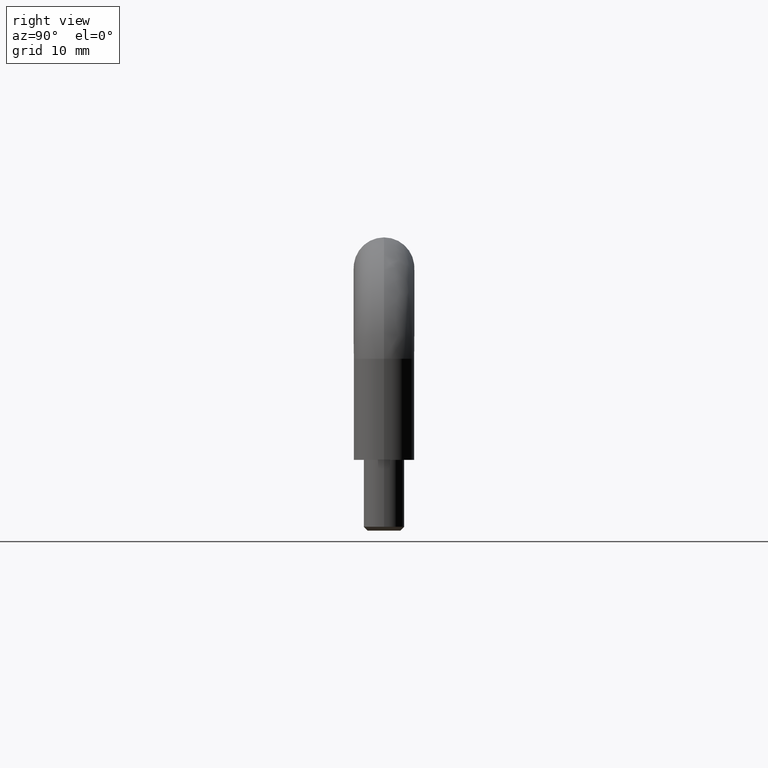
[diagram: clean part render]
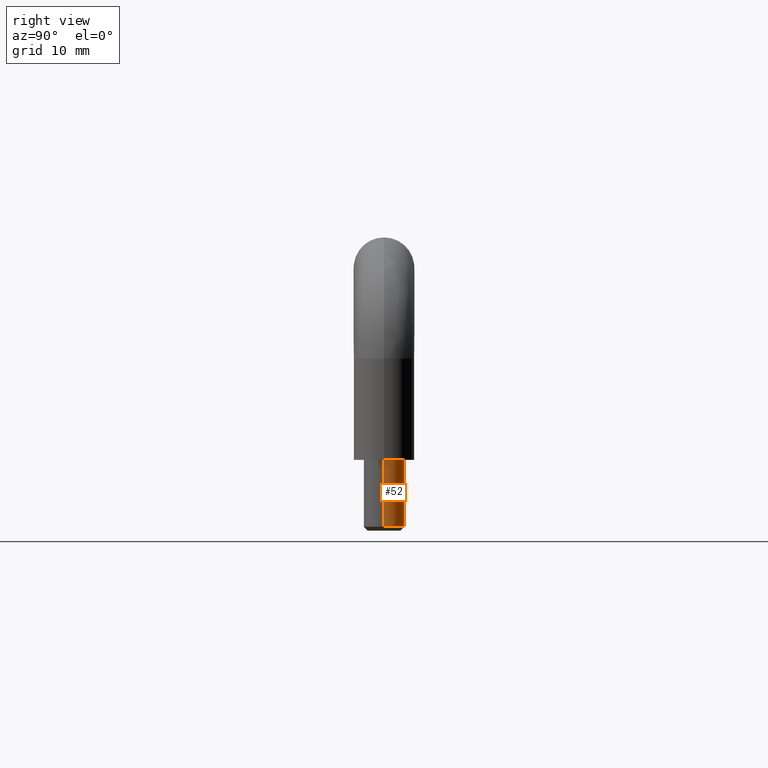
[diagram: same view with one face highlighted and labeled with its STEP entity id]
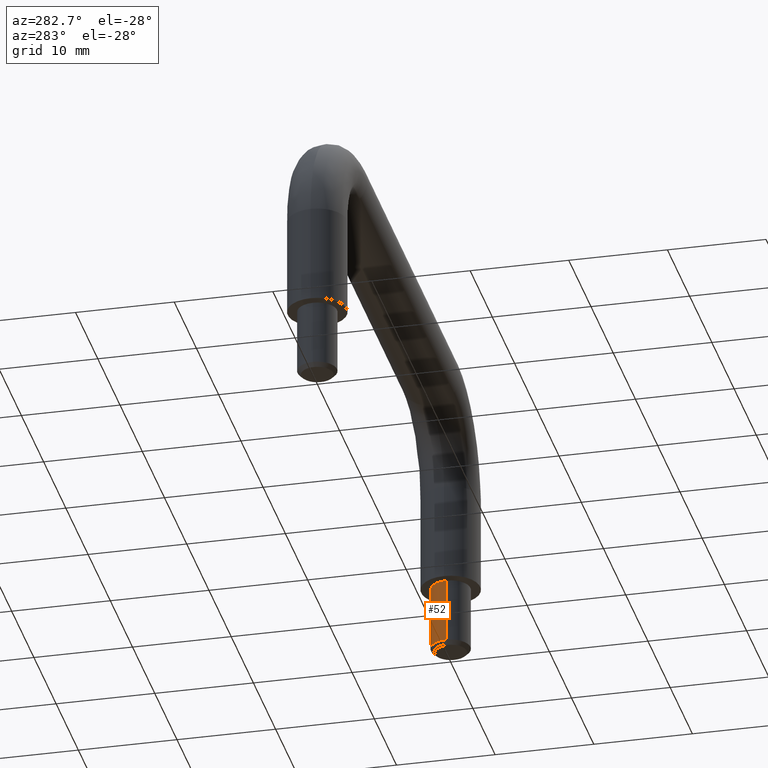
[diagram: same view with one face highlighted and labeled with its STEP entity id]
A machine part, right view. The second image highlights one B-rep face of the part: STEP entity #52.
A second angle (auxiliary view) of the same face is appended — the face is thin or edge-on in the first view.
In plain terms, the highlighted cylindrical surface (edge-blend (fillet) strip) has radius 2.0045 mm, axis along (-0, 0, -1).
Its self-contained STEP definition (entity closure, byte-faithful):
#52=ADVANCED_FACE('',(#185),#184,.T.);
#184=CYLINDRICAL_SURFACE('',#529,2.00450976625E+00);
#185=FACE_OUTER_BOUND('',#530,.T.);
#526=CARTESIAN_POINT('',(3.00000000001E+01,0.00000000000E+00,-1.93105001450E+01));
#527=DIRECTION('',(-0.00000000000E+00,0.00000000000E+00,-1.00000000000E+00));
#528=DIRECTION('',(-1.00000000000E+00,-0.00000000000E+00,0.00000000000E+00));
#529=AXIS2_PLACEMENT_3D('',#526,#527,#528);
#530=EDGE_LOOP('',(#644,#645,#646,#647));
#644=ORIENTED_EDGE('',*,*,#712,.F.);
#645=ORIENTED_EDGE('',*,*,#713,.F.);
#646=ORIENTED_EDGE('',*,*,#693,.T.);
#647=ORIENTED_EDGE('',*,*,#714,.T.);
#693=EDGE_CURVE('',#783,#782,#790,.T.);
#712=EDGE_CURVE('',#914,#915,#916,.T.);
#713=EDGE_CURVE('',#783,#914,#922,.T.);
#714=EDGE_CURVE('',#782,#915,#928,.T.);
#782=VERTEX_POINT('',#1043);
#783=VERTEX_POINT('',#1044);
#790=CIRCLE('',#1052,2.00450976625E+00);
#914=VERTEX_POINT('',#1128);
#915=VERTEX_POINT('',#1129);
#916=CIRCLE('',#1133,2.00450976625E+00);
#922=(BOUNDED_CURVE() B_SPLINE_CURVE(1,(#1134,#1135),.UNSPECIFIED.,.F.,.F.) B_SPLINE_CURVE_WITH_KNOTS((2,2),(8.33333347523E-02,9.16666664312E-01),.UNSPECIFIED.) CURVE() GEOMETRIC_REPRESENTATION_ITEM() RATIONAL_B_SPLINE_CURVE((1.00000000000E+00,1.00000000000E+00)) REPRESENTATION_ITEM('') );
#928=(BOUNDED_CURVE() B_SPLINE_CURVE(1,(#1136,#1137),.UNSPECIFIED.,.F.,.F.) B_SPLINE_CURVE_WITH_KNOTS((2,2),(8.33333333333E-02,9.16666666667E-01),.UNSPECIFIED.) CURVE() GEOMETRIC_REPRESENTATION_ITEM() RATIONAL_B_SPLINE_CURVE((7.50000000000E-01,7.50000000000E-01)) REPRESENTATION_ITEM('') );
#1043=CARTESIAN_POINT('',(3.20045097663E+01,7.40148683083E-17,-1.60000000000E+01));
#1044=CARTESIAN_POINT('',(2.79954902338E+01,-4.67518144524E-16,-1.60000000000E+01));
#1049=CARTESIAN_POINT('',(3.00000000001E+01,0.00000000000E+00,-1.60000000000E+01));
#1050=DIRECTION('',(0.00000000000E+00,0.00000000000E+00,-1.00000000000E+00));
#1051=DIRECTION('',(-1.00000000000E+00,-1.10772523366E-16,-0.00000000000E+00));
#1052=AXIS2_PLACEMENT_3D('',#1049,#1050,#1051);
#1128=CARTESIAN_POINT('',(2.79954902338E+01,0.00000000000E+00,-2.26209999999E+01));
#1129=CARTESIAN_POINT('',(3.20045097663E+01,8.53532059845E-12,-2.26209999999E+01));
#1130=CARTESIAN_POINT('',(3.00000000001E+01,0.00000000000E+00,-2.26209999999E+01));
#1131=DIRECTION('',(-0.00000000000E+00,0.00000000000E+00,-1.00000000000E+00));
#1132=DIRECTION('',(-1.00000000000E+00,-1.22460635382E-16,0.00000000000E+00));
#1133=AXIS2_PLACEMENT_3D('',#1130,#1131,#1132);
#1134=CARTESIAN_POINT('',(2.79954902338E+01,0.00000000000E+00,-1.60000000113E+01));
#1135=CARTESIAN_POINT('',(2.79954902338E+01,0.00000000000E+00,-2.26209999812E+01));
#1136=CARTESIAN_POINT('',(3.20045097664E+01,-7.40148683083E-17,-1.60000000000E+01));
#1137=CARTESIAN_POINT('',(3.20045097664E+01,-7.40148683083E-17,-2.26209999999E+01));